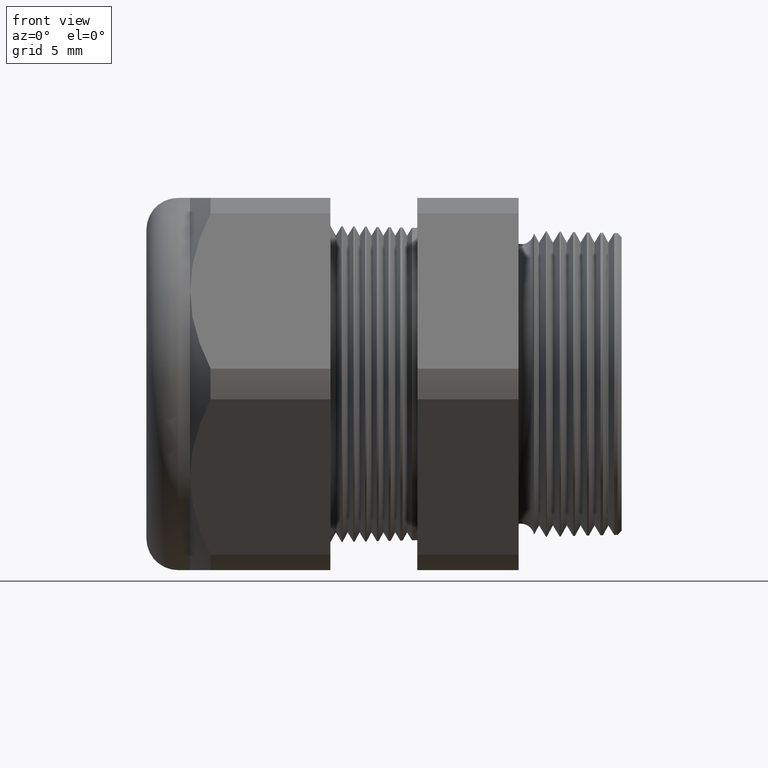
[diagram: clean part render]
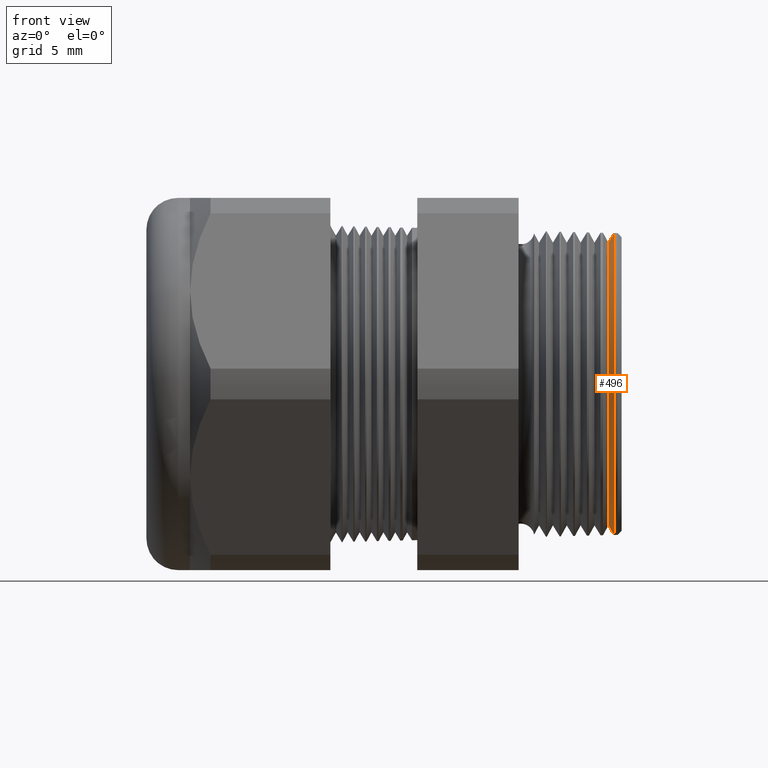
[diagram: same view with one face highlighted and labeled with its STEP entity id]
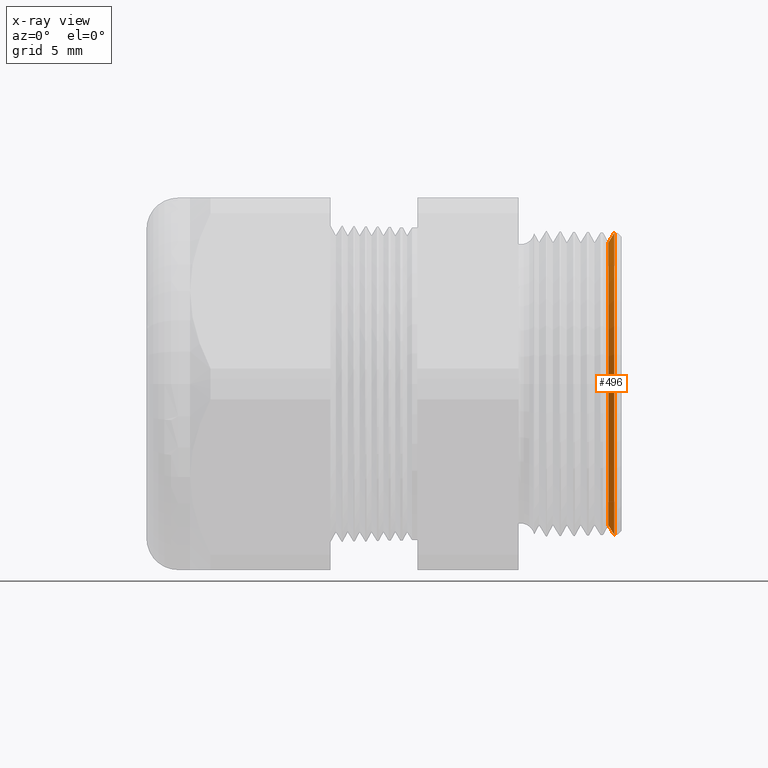
[diagram: x-ray of the same camera — body ghosted, the highlighted face saturated]
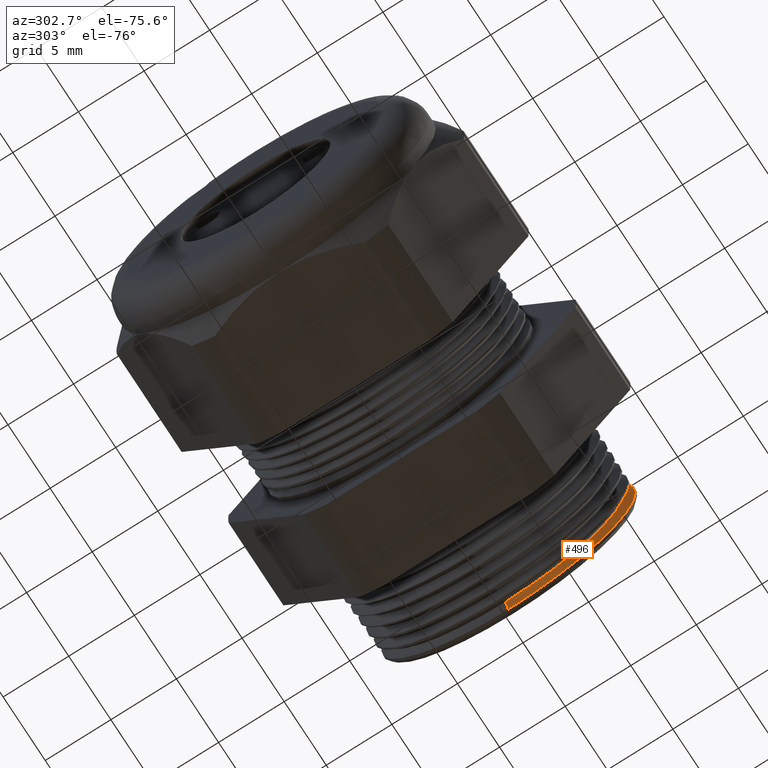
[diagram: same view with one face highlighted and labeled with its STEP entity id]
A machine part, front view. The second image highlights one B-rep face of the part: STEP entity #496.
The next image is the same camera in x-ray: the body ghosted, the highlighted face saturated — about 0% of this face is hidden behind the body in this view.
A second angle (auxiliary view) of the same face is appended — the face is thin or edge-on in the first view.
In plain terms, the highlighted conical surface has half-angle 58.5 deg.
Its self-contained STEP definition (entity closure, byte-faithful):
#475 = ORIENTED_EDGE ( 'NONE', *, *, #711, .T. ) ;
#476 = ORIENTED_EDGE ( 'NONE', *, *, #3637, .T. ) ;
#491 = EDGE_CURVE ( 'NONE', #702, #583, #1891, .T. ) ;
#496 = ADVANCED_FACE ( 'NONE', ( #1943 ), #1936, .T. ) ;
#499 = EDGE_LOOP ( 'NONE', ( #500, #501, #475, #476 ) ) ;
#500 = ORIENTED_EDGE ( 'NONE', *, *, #703, .F. ) ;
#501 = ORIENTED_EDGE ( 'NONE', *, *, #491, .T. ) ;
#583 = VERTEX_POINT ( 'NONE', #2054 ) ;
#702 = VERTEX_POINT ( 'NONE', #2312 ) ;
#703 = EDGE_CURVE ( 'NONE', #702, #704, #2311, .T. ) ;
#704 = VERTEX_POINT ( 'NONE', #2307 ) ;
#709 = VERTEX_POINT ( 'NONE', #2296 ) ;
#711 = EDGE_CURVE ( 'NONE', #583, #709, #2295, .T. ) ;
#1883 = DIRECTION ( 'NONE',  ( 0.0000000000000000000, 0.0000000000000000000, -1.000000000000000000 ) ) ;
#1884 = DIRECTION ( 'NONE',  ( 1.000000000000000000, 0.0000000000000000000, 0.0000000000000000000 ) ) ;
#1885 = CARTESIAN_POINT ( 'NONE',  ( -0.08347073567907516100, 0.0000000000000000000, 0.0000000000000000000 ) ) ;
#1886 = AXIS2_PLACEMENT_3D ( 'NONE', #1885, #1884, #1883 ) ;
#1891 = CIRCLE ( 'NONE', #1886, 0.3571072291010749500 ) ;
#1933 = DIRECTION ( 'NONE',  ( 0.0000000000000000000, 0.0000000000000000000, -1.000000000000000000 ) ) ;
#1934 = DIRECTION ( 'NONE',  ( 1.000000000000000000, 0.0000000000000000000, 0.0000000000000000000 ) ) ;
#1935 = AXIS2_PLACEMENT_3D ( 'NONE', #1938, #1934, #1933 ) ;
#1936 = CONICAL_SURFACE ( 'NONE', #1935, 0.3571072291010749500, 1.021017612416699400 ) ;
#1938 = CARTESIAN_POINT ( 'NONE',  ( -0.08347073567907516100, 0.0000000000000000000, 0.0000000000000000000 ) ) ;
#1943 = FACE_OUTER_BOUND ( 'NONE', #499, .T. ) ;
#2054 = CARTESIAN_POINT ( 'NONE',  ( -0.08347073567907516100, 4.525555008815886800E-017, -0.3571072291010749500 ) ) ;
#2292 = DIRECTION ( 'NONE',  ( 0.5224985647159347000, 0.0000000000000000000, -0.8526401643541008400 ) ) ;
#2293 = VECTOR ( 'NONE', #2292, 39.37007874015748100 ) ;
#2294 = CARTESIAN_POINT ( 'NONE',  ( -0.08347073567907516100, 0.0000000000000000000, -0.3571072291010749500 ) ) ;
#2295 = LINE ( 'NONE', #2294, #2293 ) ;
#2296 = CARTESIAN_POINT ( 'NONE',  ( -0.06868745204509199600, 4.668737591748137100E-017, -0.3812313554404987400 ) ) ;
#2307 = CARTESIAN_POINT ( 'NONE',  ( -0.06868745204509199600, 0.0000000000000000000, 0.3812313554404987400 ) ) ;
#2308 = DIRECTION ( 'NONE',  ( 0.5224985647159347000, 1.044183048100722800E-016, 0.8526401643541008400 ) ) ;
#2309 = VECTOR ( 'NONE', #2308, 39.37007874015748100 ) ;
#2310 = CARTESIAN_POINT ( 'NONE',  ( -0.08347073567907516100, 4.373302250710119800E-017, 0.3571072291010749500 ) ) ;
#2311 = LINE ( 'NONE', #2310, #2309 ) ;
#2312 = CARTESIAN_POINT ( 'NONE',  ( -0.08347073567907516100, 0.0000000000000000000, 0.3571072291010749500 ) ) ;
#3015 = DIRECTION ( 'NONE',  ( 0.0000000000000000000, 0.0000000000000000000, -1.000000000000000000 ) ) ;
#3016 = DIRECTION ( 'NONE',  ( -1.000000000000000000, 0.0000000000000000000, 0.0000000000000000000 ) ) ;
#3017 = CARTESIAN_POINT ( 'NONE',  ( -0.06868745204509199600, 0.0000000000000000000, 0.0000000000000000000 ) ) ;
#3018 = AXIS2_PLACEMENT_3D ( 'NONE', #3017, #3016, #3015 ) ;
#3019 = CIRCLE ( 'NONE', #3018, 0.3812313554404987400 ) ;
#3637 = EDGE_CURVE ( 'NONE', #709, #704, #3019, .T. ) ;